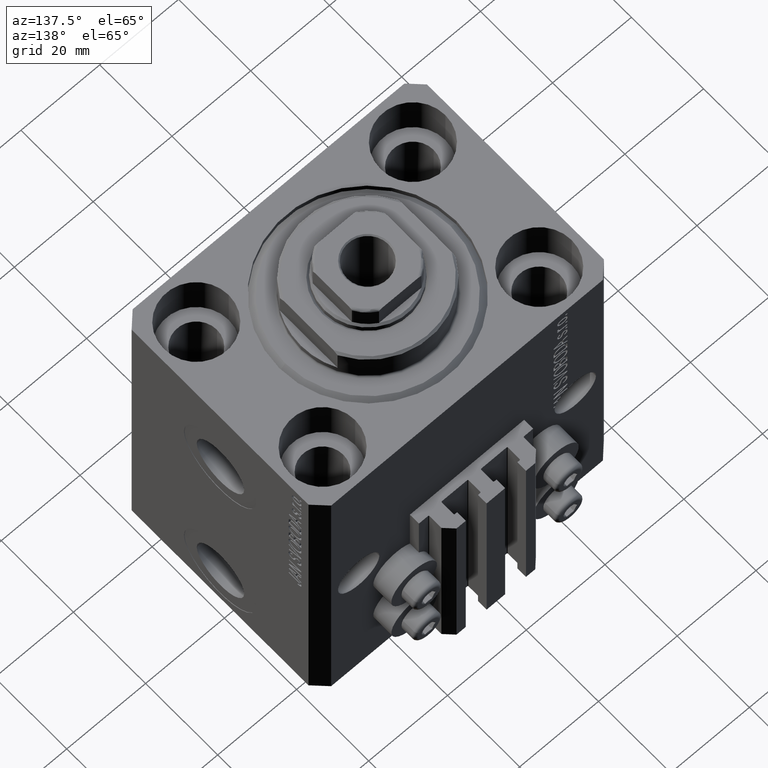
[diagram: clean part render]
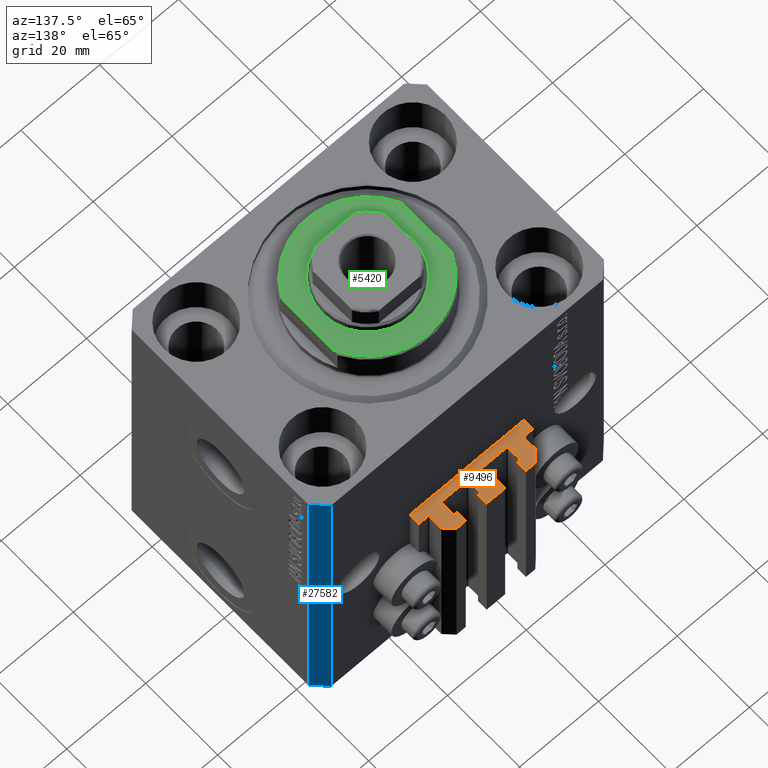
[diagram: same view with three faces highlighted in distinct colors, each labeled with its STEP entity id]
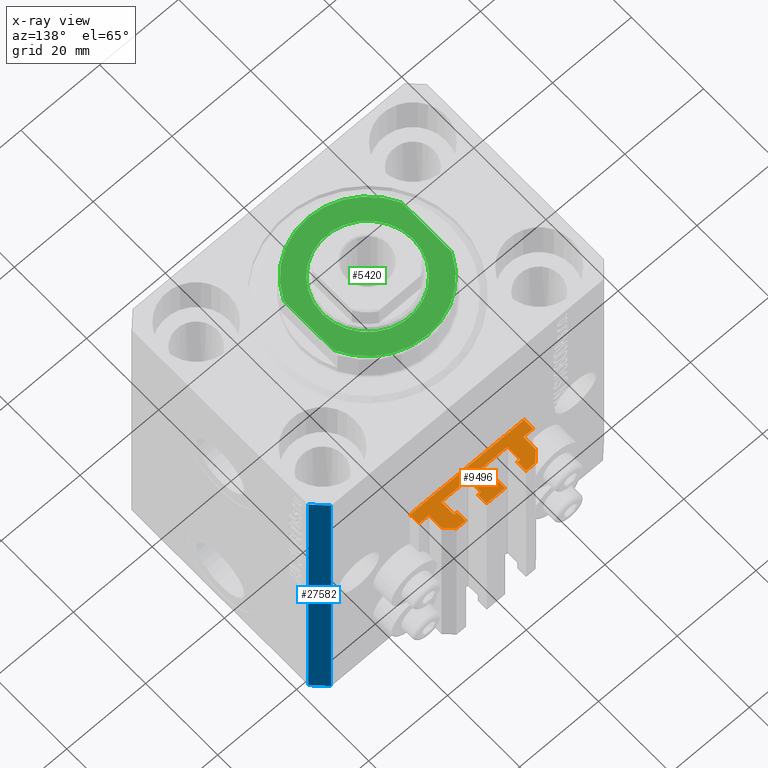
[diagram: x-ray of the same camera — body ghosted, the three highlighted faces saturated]
A machine part, auxiliary view with three faces highlighted in distinct colors.
The next image is the same camera in x-ray (body ghosted, the three faces saturated) — at least one of them is partly hidden behind the body in this view.
Their STEP definitions:

[orange] entity #9496 — the highlighted planar face has unit normal (0, 0, 1).
#11 = DIRECTION ( 'NONE',  ( 1.000000000000000000, 0.000000000000000000, 0.000000000000000000 ) ) ;
#228 = CARTESIAN_POINT ( 'NONE',  ( -2.350000000000003642, 35.50000000000001421, -33.00000000000000000 ) ) ;
#366 = DIRECTION ( 'NONE',  ( -0.7071067811865460184, -0.7071067811865490160, 0.000000000000000000 ) ) ;
#467 = CARTESIAN_POINT ( 'NONE',  ( 7.649999999999998579, 33.10000000000001563, -33.00000000000000000 ) ) ;
#968 = VECTOR ( 'NONE', #31042, 1000.000000000000000 ) ;
#991 = DIRECTION ( 'NONE',  ( 1.000000000000000000, 1.261617073437673039E-14, 0.000000000000000000 ) ) ;
#1043 = ORIENTED_EDGE ( 'NONE', *, *, #45087, .T. ) ;
#1132 = DIRECTION ( 'NONE',  ( -5.256737805990334897E-16, 1.000000000000000000, 0.000000000000000000 ) ) ;
#1181 = EDGE_CURVE ( 'NONE', #12159, #12977, #34632, .T. ) ;
#1198 = CARTESIAN_POINT ( 'NONE',  ( -8.399999999999996803, 29.69999999999999929, -33.00000000000000000 ) ) ;
#1306 = CARTESIAN_POINT ( 'NONE',  ( -10.00000000000000000, 35.50000000000000000, -33.00000000000000000 ) ) ;
#1339 = DIRECTION ( 'NONE',  ( 1.000000000000000000, 0.000000000000000000, 0.000000000000000000 ) ) ;
#1343 = LINE ( 'NONE', #44916, #27702 ) ;
#1389 = ORIENTED_EDGE ( 'NONE', *, *, #40503, .F. ) ;
#1576 = ORIENTED_EDGE ( 'NONE', *, *, #39053, .F. ) ;
#1654 = CARTESIAN_POINT ( 'NONE',  ( 1.800000000000000933, 33.10000000000001563, -33.00000000000000000 ) ) ;
#1879 = LINE ( 'NONE', #1654, #968 ) ;
#1986 = CARTESIAN_POINT ( 'NONE',  ( -14.50000000000000000, 29.99999999999999289, -33.00000000000000000 ) ) ;
#2527 = EDGE_CURVE ( 'NONE', #25609, #25677, #31585, .T. ) ;
#3252 = ORIENTED_EDGE ( 'NONE', *, *, #25566, .T. ) ;
#3318 = CARTESIAN_POINT ( 'NONE',  ( 14.49999999999999645, 30.00000000000002487, -33.00000000000000000 ) ) ;
#3348 = VERTEX_POINT ( 'NONE', #26254 ) ;
#3494 = EDGE_CURVE ( 'NONE', #3914, #30146, #40321, .T. ) ;
#3535 = DIRECTION ( 'NONE',  ( 0.000000000000000000, 0.000000000000000000, 1.000000000000000000 ) ) ;
#3605 = CARTESIAN_POINT ( 'NONE',  ( 1.600000000000000533, 29.69999999999999929, -33.00000000000000000 ) ) ;
#3914 = VERTEX_POINT ( 'NONE', #37194 ) ;
#4353 = ORIENTED_EDGE ( 'NONE', *, *, #45079, .T. ) ;
#4590 = VERTEX_POINT ( 'NONE', #4853 ) ;
#4853 = CARTESIAN_POINT ( 'NONE',  ( -8.199999999999997513, 33.09999999999998721, -33.00000000000000000 ) ) ;
#4873 = LINE ( 'NONE', #1306, #39292 ) ;
#4950 = DIRECTION ( 'NONE',  ( 1.000000000000000000, 0.000000000000000000, 0.000000000000000000 ) ) ;
#5147 = CARTESIAN_POINT ( 'NONE',  ( 8.400000000000000355, 32.90000000000001990, -33.00000000000000000 ) ) ;
#5339 = ORIENTED_EDGE ( 'NONE', *, *, #23253, .T. ) ;
#5355 = CARTESIAN_POINT ( 'NONE',  ( -8.199999999999997513, 29.50000000000000355, -33.00000000000000000 ) ) ;
#5755 = CARTESIAN_POINT ( 'NONE',  ( 1.600000000000000533, 32.90000000000001279, -33.00000000000000000 ) ) ;
#5904 = CARTESIAN_POINT ( 'NONE',  ( 12.00000000000000178, 30.20000000000002061, -33.00000000000000000 ) ) ;
#5965 = CARTESIAN_POINT ( 'NONE',  ( -2.350000000000003642, 35.50000000000001421, -33.00000000000000000 ) ) ;
#5995 = CIRCLE ( 'NONE', #27973, 0.1999999999999987899 ) ;
#6083 = VERTEX_POINT ( 'NONE', #29971 ) ;
#6127 = VECTOR ( 'NONE', #12476, 1000.000000000000000 ) ;
#6148 = DIRECTION ( 'NONE',  ( 1.000000000000000000, 0.000000000000000000, 0.000000000000000000 ) ) ;
#6516 = CARTESIAN_POINT ( 'NONE',  ( 1.800000000000000933, 32.90000000000001279, -33.00000000000000000 ) ) ;
#6584 = ORIENTED_EDGE ( 'NONE', *, *, #13367, .F. ) ;
#6662 = VECTOR ( 'NONE', #9283, 1000.000000000000000 ) ;
#6927 = CARTESIAN_POINT ( 'NONE',  ( -1.600000000000000533, 32.90000000000001279, -33.00000000000000000 ) ) ;
#7251 = VECTOR ( 'NONE', #13106, 1000.000000000000000 ) ;
#8095 = DIRECTION ( 'NONE',  ( 0.000000000000000000, 1.000000000000000000, 0.000000000000000000 ) ) ;
#8394 = CIRCLE ( 'NONE', #16713, 0.2000000000000016209 ) ;
#8411 = CARTESIAN_POINT ( 'NONE',  ( 8.200000000000001066, 33.10000000000000853, -33.00000000000000000 ) ) ;
#8685 = DIRECTION ( 'NONE',  ( 0.000000000000000000, -1.000000000000000000, 0.000000000000000000 ) ) ;
#8780 = CARTESIAN_POINT ( 'NONE',  ( 2.349999999999999645, 33.10000000000000853, -33.00000000000000000 ) ) ;
#9050 = ORIENTED_EDGE ( 'NONE', *, *, #3494, .T. ) ;
#9135 = CARTESIAN_POINT ( 'NONE',  ( -2.350000000000003642, 35.50000000000001421, -33.00000000000000000 ) ) ;
#9283 = DIRECTION ( 'NONE',  ( 0.000000000000000000, 1.000000000000000000, 0.000000000000000000 ) ) ;
#9326 = EDGE_CURVE ( 'NONE', #25035, #9505, #19202, .T. ) ;
#9496 = ADVANCED_FACE ( 'NONE', ( #43298 ), #10840, .T. ) ;
#9505 = VERTEX_POINT ( 'NONE', #16681 ) ;
#9616 = CARTESIAN_POINT ( 'NONE',  ( -8.399999999999996803, 29.69999999999999929, -33.00000000000000000 ) ) ;
#9872 = CARTESIAN_POINT ( 'NONE',  ( 8.400000000000000355, 29.70000000000000284, -33.00000000000000000 ) ) ;
#9900 = ORIENTED_EDGE ( 'NONE', *, *, #23508, .F. ) ;
#10359 = ORIENTED_EDGE ( 'NONE', *, *, #40272, .T. ) ;
#10433 = CARTESIAN_POINT ( 'NONE',  ( 2.349999999999999645, 35.50000000000001421, -33.00000000000000000 ) ) ;
#10636 = CARTESIAN_POINT ( 'NONE',  ( 12.00000000000000000, 33.50000000000001421, -33.00000000000000000 ) ) ;
#10698 = VECTOR ( 'NONE', #36078, 1000.000000000000000 ) ;
#10754 = EDGE_CURVE ( 'NONE', #6083, #30698, #36780, .T. ) ;
#10772 = EDGE_LOOP ( 'NONE', ( #25254, #27754, #16359, #39429, #6584, #39780, #28784, #4353, #3252, #23660, #1389, #1043, #18547, #18446, #28974, #34409, #33998, #24034, #10359, #36248, #31248, #9050, #1576, #32992, #40935, #14900, #9900, #5339, #12255, #15331, #40842, #46005, #36932, #46309, #16020, #44614 ) ) ;
#10840 = PLANE ( 'NONE',  #29618 ) ;
#10907 = VERTEX_POINT ( 'NONE', #38405 ) ;
#10964 = VECTOR ( 'NONE', #42288, 1000.000000000000000 ) ;
#12070 = CARTESIAN_POINT ( 'NONE',  ( 14.49999999999999645, 30.00000000000002487, -33.00000000000000000 ) ) ;
#12159 = VERTEX_POINT ( 'NONE', #228 ) ;
#12255 = ORIENTED_EDGE ( 'NONE', *, *, #42542, .F. ) ;
#12258 = CARTESIAN_POINT ( 'NONE',  ( 12.00000000000000178, 30.20000000000002061, -33.00000000000000000 ) ) ;
#12461 = DIRECTION ( 'NONE',  ( 0.000000000000000000, 0.000000000000000000, 1.000000000000000000 ) ) ;
#12476 = DIRECTION ( 'NONE',  ( -1.000000000000000000, 0.000000000000000000, 0.000000000000000000 ) ) ;
#12600 = VERTEX_POINT ( 'NONE', #9616 ) ;
#12857 = VERTEX_POINT ( 'NONE', #8411 ) ;
#12977 = VERTEX_POINT ( 'NONE', #10433 ) ;
#13106 = DIRECTION ( 'NONE',  ( 0.000000000000000000, -1.000000000000000000, 0.000000000000000000 ) ) ;
#13263 = VERTEX_POINT ( 'NONE', #5904 ) ;
#13264 = EDGE_CURVE ( 'NONE', #14156, #43686, #1879, .T. ) ;
#13299 = LINE ( 'NONE', #26861, #6662 ) ;
#13367 = EDGE_CURVE ( 'NONE', #13263, #9505, #16863, .T. ) ;
#13526 = EDGE_CURVE ( 'NONE', #13263, #37193, #19612, .T. ) ;
#13724 = DIRECTION ( 'NONE',  ( -0.7071067811865474617, 0.7071067811865474617, 0.000000000000000000 ) ) ;
#14113 = DIRECTION ( 'NONE',  ( -5.421010862427496532E-16, -1.000000000000000000, 0.000000000000000000 ) ) ;
#14156 = VERTEX_POINT ( 'NONE', #35047 ) ;
#14366 = VECTOR ( 'NONE', #991, 1000.000000000000000 ) ;
#14377 = VECTOR ( 'NONE', #26069, 1000.000000000000000 ) ;
#14457 = CARTESIAN_POINT ( 'NONE',  ( 8.199999999999999289, 29.50000000000000711, -33.00000000000000000 ) ) ;
#14678 = VERTEX_POINT ( 'NONE', #38259 ) ;
#14778 = CARTESIAN_POINT ( 'NONE',  ( -1.800000000000000933, 32.90000000000001279, -33.00000000000000000 ) ) ;
#14900 = ORIENTED_EDGE ( 'NONE', *, *, #39531, .T. ) ;
#15331 = ORIENTED_EDGE ( 'NONE', *, *, #23765, .T. ) ;
#16020 = ORIENTED_EDGE ( 'NONE', *, *, #31373, .F. ) ;
#16248 = CIRCLE ( 'NONE', #42726, 0.1999999999999987899 ) ;
#16291 = DIRECTION ( 'NONE',  ( 1.000000000000000000, 1.261617073437685503E-14, 0.000000000000000000 ) ) ;
#16359 = ORIENTED_EDGE ( 'NONE', *, *, #35703, .T. ) ;
#16374 = VECTOR ( 'NONE', #8095, 1000.000000000000000 ) ;
#16518 = EDGE_CURVE ( 'NONE', #38910, #12857, #40980, .T. ) ;
#16528 = DIRECTION ( 'NONE',  ( 0.000000000000000000, 0.000000000000000000, 1.000000000000000000 ) ) ;
#16606 = AXIS2_PLACEMENT_3D ( 'NONE', #27447, #41863, #31230 ) ;
#16681 = CARTESIAN_POINT ( 'NONE',  ( 12.20000000000000107, 30.00000000000002487, -33.00000000000000000 ) ) ;
#16713 = AXIS2_PLACEMENT_3D ( 'NONE', #29543, #22892, #37328 ) ;
#16796 = CARTESIAN_POINT ( 'NONE',  ( 1.599999999999999645, 29.69999999999999929, -33.00000000000000000 ) ) ;
#16847 = CARTESIAN_POINT ( 'NONE',  ( 2.349999999999999645, 33.10000000000000853, -33.00000000000000000 ) ) ;
#16863 = CIRCLE ( 'NONE', #28214, 0.1999999999999987899 ) ;
#17122 = DIRECTION ( 'NONE',  ( -6.776263578034378061E-17, -1.000000000000000000, 0.000000000000000000 ) ) ;
#17353 = CARTESIAN_POINT ( 'NONE',  ( 7.649999999999998579, 35.50000000000001421, -33.00000000000000000 ) ) ;
#17431 = CARTESIAN_POINT ( 'NONE',  ( -1.600000000000000755, 29.69999999999999929, -33.00000000000000000 ) ) ;
#17534 = CARTESIAN_POINT ( 'NONE',  ( -12.00000000000000000, 30.19999999999999218, -33.00000000000000000 ) ) ;
#17699 = VECTOR ( 'NONE', #29650, 1000.000000000000000 ) ;
#17983 = DIRECTION ( 'NONE',  ( 1.000000000000000000, 0.000000000000000000, 0.000000000000000000 ) ) ;
#18098 = CIRCLE ( 'NONE', #16606, 0.2000000000000005107 ) ;
#18446 = ORIENTED_EDGE ( 'NONE', *, *, #45470, .T. ) ;
#18547 = ORIENTED_EDGE ( 'NONE', *, *, #37684, .F. ) ;
#18554 = AXIS2_PLACEMENT_3D ( 'NONE', #6516, #41822, #27405 ) ;
#18569 = DIRECTION ( 'NONE',  ( 0.000000000000000000, 0.000000000000000000, 1.000000000000000000 ) ) ;
#19009 = LINE ( 'NONE', #3605, #16374 ) ;
#19202 = LINE ( 'NONE', #12070, #30354 ) ;
#19245 = VECTOR ( 'NONE', #38907, 1000.000000000000000 ) ;
#19381 = DIRECTION ( 'NONE',  ( 1.000000000000000000, 0.000000000000000000, -0.000000000000000000 ) ) ;
#19407 = CIRCLE ( 'NONE', #33035, 0.2000000000000005107 ) ;
#19612 = LINE ( 'NONE', #12258, #29752 ) ;
#19762 = EDGE_CURVE ( 'NONE', #32786, #32569, #27797, .T. ) ;
#19781 = VERTEX_POINT ( 'NONE', #5755 ) ;
#19833 = VERTEX_POINT ( 'NONE', #26536 ) ;
#19948 = CARTESIAN_POINT ( 'NONE',  ( 8.399999999999998579, 32.90000000000001990, -33.00000000000000000 ) ) ;
#20072 = LINE ( 'NONE', #34519, #6127 ) ;
#20167 = CARTESIAN_POINT ( 'NONE',  ( -1.800000000000000933, 33.10000000000001563, -33.00000000000000000 ) ) ;
#20385 = LINE ( 'NONE', #34831, #14377 ) ;
#21187 = VECTOR ( 'NONE', #23953, 1000.000000000000000 ) ;
#21341 = DIRECTION ( 'NONE',  ( 0.000000000000000000, 0.000000000000000000, 1.000000000000000000 ) ) ;
#22576 = CARTESIAN_POINT ( 'NONE',  ( -2.350000000000003197, 33.10000000000000853, -33.00000000000000000 ) ) ;
#22791 = VECTOR ( 'NONE', #14113, 1000.000000000000000 ) ;
#22892 = DIRECTION ( 'NONE',  ( 0.000000000000000000, 0.000000000000000000, 1.000000000000000000 ) ) ;
#23253 = EDGE_CURVE ( 'NONE', #12600, #14678, #41456, .T. ) ;
#23508 = EDGE_CURVE ( 'NONE', #12600, #38108, #16248, .T. ) ;
#23523 = CARTESIAN_POINT ( 'NONE',  ( -12.20000000000000107, 29.99999999999998934, -33.00000000000000000 ) ) ;
#23650 = CARTESIAN_POINT ( 'NONE',  ( -8.199999999999997513, 33.09999999999998721, -33.00000000000000000 ) ) ;
#23660 = ORIENTED_EDGE ( 'NONE', *, *, #16518, .T. ) ;
#23708 = VERTEX_POINT ( 'NONE', #9872 ) ;
#23765 = EDGE_CURVE ( 'NONE', #4590, #45790, #34534, .T. ) ;
#23849 = VECTOR ( 'NONE', #33672, 1000.000000000000000 ) ;
#23953 = DIRECTION ( 'NONE',  ( 0.000000000000000000, 1.000000000000000000, 0.000000000000000000 ) ) ;
#24034 = ORIENTED_EDGE ( 'NONE', *, *, #13264, .T. ) ;
#24646 = VECTOR ( 'NONE', #33745, 1000.000000000000000 ) ;
#24740 = EDGE_CURVE ( 'NONE', #12159, #3914, #38968, .T. ) ;
#24758 = EDGE_CURVE ( 'NONE', #14156, #19781, #38977, .T. ) ;
#24868 = DIRECTION ( 'NONE',  ( 0.000000000000000000, 0.000000000000000000, 1.000000000000000000 ) ) ;
#24931 = VECTOR ( 'NONE', #17122, 1000.000000000000000 ) ;
#24950 = VERTEX_POINT ( 'NONE', #28802 ) ;
#25035 = VERTEX_POINT ( 'NONE', #3318 ) ;
#25046 = VECTOR ( 'NONE', #35403, 1000.000000000000000 ) ;
#25254 = ORIENTED_EDGE ( 'NONE', *, *, #25942, .T. ) ;
#25566 = EDGE_CURVE ( 'NONE', #28934, #38910, #1343, .T. ) ;
#25609 = VERTEX_POINT ( 'NONE', #27190 ) ;
#25677 = VERTEX_POINT ( 'NONE', #17431 ) ;
#25942 = EDGE_CURVE ( 'NONE', #10907, #32786, #41091, .T. ) ;
#26069 = DIRECTION ( 'NONE',  ( -1.000000000000000000, 0.000000000000000000, 0.000000000000000000 ) ) ;
#26254 = CARTESIAN_POINT ( 'NONE',  ( -1.800000000000000933, 29.50000000000000355, -33.00000000000000000 ) ) ;
#26493 = CIRCLE ( 'NONE', #27226, 0.2000000000000031197 ) ;
#26536 = CARTESIAN_POINT ( 'NONE',  ( 9.999999999999998224, 35.50000000000001421, -33.00000000000000000 ) ) ;
#26616 = LINE ( 'NONE', #33470, #43656 ) ;
#26835 = VERTEX_POINT ( 'NONE', #23523 ) ;
#26861 = CARTESIAN_POINT ( 'NONE',  ( 14.49999999999999645, 27.50000000000000355, -33.00000000000000000 ) ) ;
#27094 = AXIS2_PLACEMENT_3D ( 'NONE', #37370, #12461, #1339 ) ;
#27190 = CARTESIAN_POINT ( 'NONE',  ( -1.599999999999997868, 32.90000000000001279, -33.00000000000000000 ) ) ;
#27226 = AXIS2_PLACEMENT_3D ( 'NONE', #14778, #18569, #44138 ) ;
#27405 = DIRECTION ( 'NONE',  ( 1.000000000000000000, 0.000000000000000000, 0.000000000000000000 ) ) ;
#27447 = CARTESIAN_POINT ( 'NONE',  ( -8.199999999999997513, 32.89999999999999147, -33.00000000000000000 ) ) ;
#27485 = DIRECTION ( 'NONE',  ( -1.000000000000000000, 0.000000000000000000, 0.000000000000000000 ) ) ;
#27644 = VECTOR ( 'NONE', #16291, 1000.000000000000000 ) ;
#27702 = VECTOR ( 'NONE', #8685, 1000.000000000000000 ) ;
#27754 = ORIENTED_EDGE ( 'NONE', *, *, #19762, .T. ) ;
#27797 = LINE ( 'NONE', #45991, #19245 ) ;
#27973 = AXIS2_PLACEMENT_3D ( 'NONE', #36004, #3535, #17983 ) ;
#28214 = AXIS2_PLACEMENT_3D ( 'NONE', #31271, #39056, #6148 ) ;
#28233 = DIRECTION ( 'NONE',  ( 1.000000000000000000, 0.000000000000000000, 0.000000000000000000 ) ) ;
#28691 = VECTOR ( 'NONE', #11, 1000.000000000000000 ) ;
#28784 = ORIENTED_EDGE ( 'NONE', *, *, #40341, .T. ) ;
#28802 = CARTESIAN_POINT ( 'NONE',  ( -7.650000000000000355, 35.50000000000000000, -33.00000000000000000 ) ) ;
#28812 = EDGE_CURVE ( 'NONE', #24950, #33410, #40139, .T. ) ;
#28934 = VERTEX_POINT ( 'NONE', #17353 ) ;
#28974 = ORIENTED_EDGE ( 'NONE', *, *, #45241, .F. ) ;
#29543 = CARTESIAN_POINT ( 'NONE',  ( 1.800000000000000933, 29.69999999999999929, -33.00000000000000000 ) ) ;
#29618 = AXIS2_PLACEMENT_3D ( 'NONE', #45805, #34684, #19381 ) ;
#29650 = DIRECTION ( 'NONE',  ( 1.000000000000000000, -1.261617073437673828E-14, 0.000000000000000000 ) ) ;
#29752 = VECTOR ( 'NONE', #1132, 1000.000000000000000 ) ;
#29971 = CARTESIAN_POINT ( 'NONE',  ( -12.00000000000000000, 33.49999999999998579, -33.00000000000000000 ) ) ;
#30146 = VERTEX_POINT ( 'NONE', #20167 ) ;
#30354 = VECTOR ( 'NONE', #27485, 1000.000000000000000 ) ;
#30481 = EDGE_CURVE ( 'NONE', #35118, #19781, #19009, .T. ) ;
#30601 = VERTEX_POINT ( 'NONE', #37942 ) ;
#30698 = VERTEX_POINT ( 'NONE', #17534 ) ;
#30936 = CIRCLE ( 'NONE', #36975, 0.1999999999999970690 ) ;
#31042 = DIRECTION ( 'NONE',  ( 1.000000000000000000, -1.261617073437681085E-14, 0.000000000000000000 ) ) ;
#31230 = DIRECTION ( 'NONE',  ( 1.000000000000000000, 0.000000000000000000, 0.000000000000000000 ) ) ;
#31248 = ORIENTED_EDGE ( 'NONE', *, *, #24740, .T. ) ;
#31271 = CARTESIAN_POINT ( 'NONE',  ( 12.20000000000000107, 30.20000000000002061, -33.00000000000000000 ) ) ;
#31373 = EDGE_CURVE ( 'NONE', #26835, #30698, #19407, .T. ) ;
#31585 = LINE ( 'NONE', #6927, #24931 ) ;
#32238 = CARTESIAN_POINT ( 'NONE',  ( -12.20000000000000107, 30.19999999999999218, -33.00000000000000000 ) ) ;
#32569 = VERTEX_POINT ( 'NONE', #33286 ) ;
#32694 = CARTESIAN_POINT ( 'NONE',  ( -14.50000000000000000, 27.50000000000000355, -33.00000000000000000 ) ) ;
#32786 = VERTEX_POINT ( 'NONE', #32694 ) ;
#32992 = ORIENTED_EDGE ( 'NONE', *, *, #2527, .T. ) ;
#33035 = AXIS2_PLACEMENT_3D ( 'NONE', #32238, #21341, #28233 ) ;
#33286 = CARTESIAN_POINT ( 'NONE',  ( 14.49999999999999645, 27.50000000000000355, -33.00000000000000000 ) ) ;
#33410 = VERTEX_POINT ( 'NONE', #39207 ) ;
#33467 = CARTESIAN_POINT ( 'NONE',  ( -12.00000000000000000, 33.49999999999998579, -33.00000000000000000 ) ) ;
#33470 = CARTESIAN_POINT ( 'NONE',  ( -7.650000000000000355, 33.09999999999999432, -33.00000000000000000 ) ) ;
#33672 = DIRECTION ( 'NONE',  ( -1.084202172485505223E-15, 1.000000000000000000, 0.000000000000000000 ) ) ;
#33745 = DIRECTION ( 'NONE',  ( -1.000000000000000000, 0.000000000000000000, 0.000000000000000000 ) ) ;
#33836 = EDGE_CURVE ( 'NONE', #45790, #24950, #26616, .T. ) ;
#33998 = ORIENTED_EDGE ( 'NONE', *, *, #24758, .F. ) ;
#34047 = DIRECTION ( 'NONE',  ( -1.000000000000000000, 1.508455196501571429E-15, 0.000000000000000000 ) ) ;
#34190 = EDGE_CURVE ( 'NONE', #3348, #25677, #36134, .T. ) ;
#34409 = ORIENTED_EDGE ( 'NONE', *, *, #30481, .T. ) ;
#34519 = CARTESIAN_POINT ( 'NONE',  ( 9.999999999999998224, 35.50000000000001421, -33.00000000000000000 ) ) ;
#34534 = LINE ( 'NONE', #23650, #27644 ) ;
#34632 = LINE ( 'NONE', #5965, #28691 ) ;
#34684 = DIRECTION ( 'NONE',  ( 0.000000000000000000, 0.000000000000000000, 1.000000000000000000 ) ) ;
#34800 = VERTEX_POINT ( 'NONE', #19948 ) ;
#34831 = CARTESIAN_POINT ( 'NONE',  ( -1.800000000000000933, 29.50000000000000355, -33.00000000000000000 ) ) ;
#34839 = LINE ( 'NONE', #10636, #37831 ) ;
#35047 = CARTESIAN_POINT ( 'NONE',  ( 1.800000000000000933, 33.10000000000001563, -33.00000000000000000 ) ) ;
#35118 = VERTEX_POINT ( 'NONE', #16796 ) ;
#35403 = DIRECTION ( 'NONE',  ( -1.000000000000000000, -1.084202172485504828E-15, 0.000000000000000000 ) ) ;
#35703 = EDGE_CURVE ( 'NONE', #32569, #25035, #13299, .T. ) ;
#36004 = CARTESIAN_POINT ( 'NONE',  ( 8.199999999999999289, 29.70000000000000284, -33.00000000000000000 ) ) ;
#36078 = DIRECTION ( 'NONE',  ( 0.000000000000000000, -1.000000000000000000, 0.000000000000000000 ) ) ;
#36134 = CIRCLE ( 'NONE', #27094, 0.1999999999999994282 ) ;
#36248 = ORIENTED_EDGE ( 'NONE', *, *, #1181, .F. ) ;
#36780 = LINE ( 'NONE', #33467, #10698 ) ;
#36932 = ORIENTED_EDGE ( 'NONE', *, *, #42030, .T. ) ;
#36975 = AXIS2_PLACEMENT_3D ( 'NONE', #44486, #16528, #4950 ) ;
#37193 = VERTEX_POINT ( 'NONE', #44891 ) ;
#37194 = CARTESIAN_POINT ( 'NONE',  ( -2.350000000000003197, 33.10000000000000853, -33.00000000000000000 ) ) ;
#37328 = DIRECTION ( 'NONE',  ( 1.000000000000000000, 0.000000000000000000, 0.000000000000000000 ) ) ;
#37370 = CARTESIAN_POINT ( 'NONE',  ( -1.800000000000000933, 29.69999999999999929, -33.00000000000000000 ) ) ;
#37612 = LINE ( 'NONE', #5147, #22791 ) ;
#37684 = EDGE_CURVE ( 'NONE', #43853, #23708, #5995, .T. ) ;
#37831 = VECTOR ( 'NONE', #13724, 1000.000000000000114 ) ;
#37942 = CARTESIAN_POINT ( 'NONE',  ( 1.800000000000000933, 29.50000000000000000, -33.00000000000000000 ) ) ;
#38108 = VERTEX_POINT ( 'NONE', #5355 ) ;
#38259 = CARTESIAN_POINT ( 'NONE',  ( -8.400000000000000355, 32.89999999999999858, -33.00000000000000000 ) ) ;
#38405 = CARTESIAN_POINT ( 'NONE',  ( -14.50000000000000000, 29.99999999999999289, -33.00000000000000000 ) ) ;
#38734 = CARTESIAN_POINT ( 'NONE',  ( 7.649999999999998579, 33.10000000000001563, -33.00000000000000000 ) ) ;
#38907 = DIRECTION ( 'NONE',  ( 1.000000000000000000, 0.000000000000000000, 0.000000000000000000 ) ) ;
#38910 = VERTEX_POINT ( 'NONE', #38734 ) ;
#38968 = LINE ( 'NONE', #9135, #10964 ) ;
#38977 = CIRCLE ( 'NONE', #18554, 0.2000000000000033418 ) ;
#39053 = EDGE_CURVE ( 'NONE', #25609, #30146, #26493, .T. ) ;
#39056 = DIRECTION ( 'NONE',  ( 0.000000000000000000, 0.000000000000000000, 1.000000000000000000 ) ) ;
#39207 = CARTESIAN_POINT ( 'NONE',  ( -10.00000000000000000, 35.50000000000000000, -33.00000000000000000 ) ) ;
#39292 = VECTOR ( 'NONE', #366, 1000.000000000000227 ) ;
#39297 = DIRECTION ( 'NONE',  ( 1.000000000000000000, 0.000000000000000000, 0.000000000000000000 ) ) ;
#39429 = ORIENTED_EDGE ( 'NONE', *, *, #9326, .T. ) ;
#39531 = EDGE_CURVE ( 'NONE', #3348, #38108, #20385, .T. ) ;
#39780 = ORIENTED_EDGE ( 'NONE', *, *, #13526, .T. ) ;
#39998 = CARTESIAN_POINT ( 'NONE',  ( -8.199999999999997513, 29.69999999999999929, -33.00000000000000000 ) ) ;
#40139 = LINE ( 'NONE', #43676, #24646 ) ;
#40272 = EDGE_CURVE ( 'NONE', #43686, #12977, #41242, .T. ) ;
#40321 = LINE ( 'NONE', #22576, #14366 ) ;
#40325 = DIRECTION ( 'NONE',  ( 0.000000000000000000, 1.000000000000000000, 0.000000000000000000 ) ) ;
#40341 = EDGE_CURVE ( 'NONE', #37193, #19833, #34839, .T. ) ;
#40503 = EDGE_CURVE ( 'NONE', #34800, #12857, #30936, .T. ) ;
#40842 = ORIENTED_EDGE ( 'NONE', *, *, #33836, .T. ) ;
#40935 = ORIENTED_EDGE ( 'NONE', *, *, #34190, .F. ) ;
#40980 = LINE ( 'NONE', #467, #17699 ) ;
#41091 = LINE ( 'NONE', #1986, #7251 ) ;
#41242 = LINE ( 'NONE', #8780, #21187 ) ;
#41456 = LINE ( 'NONE', #1198, #23849 ) ;
#41611 = CARTESIAN_POINT ( 'NONE',  ( -12.20000000000000107, 29.99999999999998934, -33.00000000000000000 ) ) ;
#41687 = CARTESIAN_POINT ( 'NONE',  ( -7.650000000000000355, 33.09999999999999432, -33.00000000000000000 ) ) ;
#41822 = DIRECTION ( 'NONE',  ( 0.000000000000000000, 0.000000000000000000, 1.000000000000000000 ) ) ;
#41863 = DIRECTION ( 'NONE',  ( 0.000000000000000000, 0.000000000000000000, 1.000000000000000000 ) ) ;
#42030 = EDGE_CURVE ( 'NONE', #33410, #6083, #4873, .T. ) ;
#42288 = DIRECTION ( 'NONE',  ( 1.807003620809174632E-16, -1.000000000000000000, 0.000000000000000000 ) ) ;
#42542 = EDGE_CURVE ( 'NONE', #4590, #14678, #18098, .T. ) ;
#42726 = AXIS2_PLACEMENT_3D ( 'NONE', #39998, #24868, #39297 ) ;
#42730 = LINE ( 'NONE', #46504, #25046 ) ;
#43298 = FACE_OUTER_BOUND ( 'NONE', #10772, .T. ) ;
#43656 = VECTOR ( 'NONE', #40325, 1000.000000000000000 ) ;
#43676 = CARTESIAN_POINT ( 'NONE',  ( -7.650000000000000355, 35.50000000000000000, -33.00000000000000000 ) ) ;
#43686 = VERTEX_POINT ( 'NONE', #16847 ) ;
#43853 = VERTEX_POINT ( 'NONE', #14457 ) ;
#44077 = EDGE_CURVE ( 'NONE', #26835, #10907, #45616, .T. ) ;
#44138 = DIRECTION ( 'NONE',  ( 1.000000000000000000, 0.000000000000000000, 0.000000000000000000 ) ) ;
#44486 = CARTESIAN_POINT ( 'NONE',  ( 8.200000000000001066, 32.90000000000001990, -33.00000000000000000 ) ) ;
#44614 = ORIENTED_EDGE ( 'NONE', *, *, #44077, .T. ) ;
#44891 = CARTESIAN_POINT ( 'NONE',  ( 12.00000000000000000, 33.50000000000001421, -33.00000000000000000 ) ) ;
#44916 = CARTESIAN_POINT ( 'NONE',  ( 7.649999999999998579, 35.50000000000001421, -33.00000000000000000 ) ) ;
#45079 = EDGE_CURVE ( 'NONE', #19833, #28934, #20072, .T. ) ;
#45087 = EDGE_CURVE ( 'NONE', #34800, #23708, #37612, .T. ) ;
#45241 = EDGE_CURVE ( 'NONE', #35118, #30601, #8394, .T. ) ;
#45398 = VECTOR ( 'NONE', #34047, 1000.000000000000000 ) ;
#45470 = EDGE_CURVE ( 'NONE', #43853, #30601, #42730, .T. ) ;
#45616 = LINE ( 'NONE', #41611, #45398 ) ;
#45790 = VERTEX_POINT ( 'NONE', #41687 ) ;
#45805 = CARTESIAN_POINT ( 'NONE',  ( 12.20000000000000107, 30.20000000000002061, -33.00000000000000000 ) ) ;
#45991 = CARTESIAN_POINT ( 'NONE',  ( -14.50000000000000000, 27.50000000000000355, -33.00000000000000000 ) ) ;
#46005 = ORIENTED_EDGE ( 'NONE', *, *, #28812, .T. ) ;
#46309 = ORIENTED_EDGE ( 'NONE', *, *, #10754, .T. ) ;
#46504 = CARTESIAN_POINT ( 'NONE',  ( 8.199999999999999289, 29.50000000000000711, -33.00000000000000000 ) ) ;

[blue] entity #27582 — the highlighted planar face has unit normal (0.7071, 0.7071, 0).
#667 = DIRECTION ( 'NONE',  ( 0.000000000000000000, 0.000000000000000000, 1.000000000000000000 ) ) ;
#1319 = DIRECTION ( 'NONE',  ( 0.7071067811865594521, 0.7071067811865356934, -0.000000000000000000 ) ) ;
#3542 = VERTEX_POINT ( 'NONE', #20168 ) ;
#4089 = CARTESIAN_POINT ( 'NONE',  ( 37.50000000000051870, 24.49999999999995381, -80.00000000000000000 ) ) ;
#4269 = ORIENTED_EDGE ( 'NONE', *, *, #46537, .T. ) ;
#6868 = ORIENTED_EDGE ( 'NONE', *, *, #37486, .F. ) ;
#8492 = CARTESIAN_POINT ( 'NONE',  ( 37.50000000000051870, 24.49999999999995381, 0.000000000000000000 ) ) ;
#9601 = CARTESIAN_POINT ( 'NONE',  ( 34.50000000000056843, 27.50000000000000000, -80.00000000000000000 ) ) ;
#10272 = EDGE_CURVE ( 'NONE', #3542, #39650, #32906, .T. ) ;
#11109 = EDGE_LOOP ( 'NONE', ( #6868, #21857, #36273, #4269 ) ) ;
#11682 = EDGE_CURVE ( 'NONE', #3542, #29926, #40328, .T. ) ;
#12329 = DIRECTION ( 'NONE',  ( -0.7071067811865356934, 0.7071067811865594521, 0.000000000000000000 ) ) ;
#14219 = VERTEX_POINT ( 'NONE', #14885 ) ;
#14885 = CARTESIAN_POINT ( 'NONE',  ( 34.50000000000056843, 27.50000000000000000, 0.000000000000000000 ) ) ;
#18070 = DIRECTION ( 'NONE',  ( -0.7071067811865356934, 0.7071067811865594521, 0.000000000000000000 ) ) ;
#19348 = FACE_OUTER_BOUND ( 'NONE', #11109, .T. ) ;
#20168 = CARTESIAN_POINT ( 'NONE',  ( 37.50000000000051870, 24.49999999999995381, -80.00000000000000000 ) ) ;
#20753 = LINE ( 'NONE', #9601, #22822 ) ;
#21857 = ORIENTED_EDGE ( 'NONE', *, *, #10272, .F. ) ;
#22659 = VECTOR ( 'NONE', #12329, 1000.000000000000114 ) ;
#22822 = VECTOR ( 'NONE', #28573, 1000.000000000000000 ) ;
#23252 = CARTESIAN_POINT ( 'NONE',  ( 37.50000000000051870, 24.49999999999995381, 0.000000000000000000 ) ) ;
#25429 = CARTESIAN_POINT ( 'NONE',  ( 34.50000000000056843, 27.50000000000000000, -80.00000000000000000 ) ) ;
#27582 = ADVANCED_FACE ( 'NONE', ( #19348 ), #36646, .T. ) ;
#28573 = DIRECTION ( 'NONE',  ( 0.000000000000000000, 0.000000000000000000, 1.000000000000000000 ) ) ;
#29563 = CARTESIAN_POINT ( 'NONE',  ( 37.50000000000051870, 24.49999999999995381, -80.00000000000000000 ) ) ;
#29926 = VERTEX_POINT ( 'NONE', #25429 ) ;
#32906 = LINE ( 'NONE', #43307, #40199 ) ;
#33446 = LINE ( 'NONE', #23252, #22659 ) ;
#36273 = ORIENTED_EDGE ( 'NONE', *, *, #11682, .T. ) ;
#36646 = PLANE ( 'NONE',  #38205 ) ;
#37486 = EDGE_CURVE ( 'NONE', #39650, #14219, #33446, .T. ) ;
#38205 = AXIS2_PLACEMENT_3D ( 'NONE', #29563, #1319, #44429 ) ;
#39650 = VERTEX_POINT ( 'NONE', #8492 ) ;
#40199 = VECTOR ( 'NONE', #667, 1000.000000000000000 ) ;
#40328 = LINE ( 'NONE', #4089, #44015 ) ;
#43307 = CARTESIAN_POINT ( 'NONE',  ( 37.50000000000051870, 24.49999999999995381, -80.00000000000000000 ) ) ;
#44015 = VECTOR ( 'NONE', #18070, 1000.000000000000114 ) ;
#44429 = DIRECTION ( 'NONE',  ( -0.7071067811865356934, 0.7071067811865594521, 0.000000000000000000 ) ) ;
#46537 = EDGE_CURVE ( 'NONE', #29926, #14219, #20753, .T. ) ;

[green] entity #5420 — the highlighted planar face has unit normal (0, 0, 1).
#138 = ORIENTED_EDGE ( 'NONE', *, *, #7543, .T. ) ;
#750 = AXIS2_PLACEMENT_3D ( 'NONE', #1023, #798, #44600 ) ;
#798 = DIRECTION ( 'NONE',  ( 0.000000000000000000, 0.000000000000000000, -1.000000000000000000 ) ) ;
#921 = LINE ( 'NONE', #44265, #8996 ) ;
#1023 = CARTESIAN_POINT ( 'NONE',  ( 0.000000000000000000, 0.000000000000000000, -8.000000000000000000 ) ) ;
#3997 = DIRECTION ( 'NONE',  ( -1.000000000000000000, 0.000000000000000000, -0.000000000000000000 ) ) ;
#4190 = EDGE_CURVE ( 'NONE', #23535, #39108, #38582, .T. ) ;
#4723 = DIRECTION ( 'NONE',  ( -1.000000000000000000, 0.000000000000000000, 0.000000000000000000 ) ) ;
#5420 = ADVANCED_FACE ( 'NONE', ( #36465, #39299 ), #21315, .T. ) ;
#6785 = ORIENTED_EDGE ( 'NONE', *, *, #4190, .T. ) ;
#7543 = EDGE_CURVE ( 'NONE', #42765, #42229, #16625, .T. ) ;
#7550 = VECTOR ( 'NONE', #28029, 1000.000000000000000 ) ;
#7557 = DIRECTION ( 'NONE',  ( -0.000000000000000000, -1.000000000000000000, -0.000000000000000000 ) ) ;
#8033 = CARTESIAN_POINT ( 'NONE',  ( 0.000000000000000000, 0.000000000000000000, -8.000000000000000000 ) ) ;
#8845 = CARTESIAN_POINT ( 'NONE',  ( 0.000000000000000000, 0.000000000000000000, -8.000000000000000000 ) ) ;
#8996 = VECTOR ( 'NONE', #7557, 1000.000000000000000 ) ;
#10113 = AXIS2_PLACEMENT_3D ( 'NONE', #8845, #12859, #23095 ) ;
#11299 = DIRECTION ( 'NONE',  ( -1.000000000000000000, 0.000000000000000000, 0.000000000000000000 ) ) ;
#11973 = CARTESIAN_POINT ( 'NONE',  ( -14.99999999999999645, -6.873863542433765517, -8.000000000000000000 ) ) ;
#12859 = DIRECTION ( 'NONE',  ( -0.000000000000000000, -0.000000000000000000, 1.000000000000000000 ) ) ;
#14659 = DIRECTION ( 'NONE',  ( 0.000000000000000000, 0.000000000000000000, -1.000000000000000000 ) ) ;
#16625 = CIRCLE ( 'NONE', #18911, 16.50000000000000000 ) ;
#18079 = CARTESIAN_POINT ( 'NONE',  ( 14.99999999999999645, -6.873863542433765517, -8.000000000000000000 ) ) ;
#18219 = CARTESIAN_POINT ( 'NONE',  ( 0.000000000000000000, 0.000000000000000000, -8.000000000000000000 ) ) ;
#18911 = AXIS2_PLACEMENT_3D ( 'NONE', #8033, #22511, #4723 ) ;
#21315 = PLANE ( 'NONE',  #40138 ) ;
#21374 = EDGE_CURVE ( 'NONE', #39108, #23535, #24520, .T. ) ;
#22410 = ORIENTED_EDGE ( 'NONE', *, *, #38370, .T. ) ;
#22511 = DIRECTION ( 'NONE',  ( 0.000000000000000000, 0.000000000000000000, -1.000000000000000000 ) ) ;
#23095 = DIRECTION ( 'NONE',  ( -1.000000000000000000, 0.000000000000000000, 0.000000000000000000 ) ) ;
#23535 = VERTEX_POINT ( 'NONE', #42849 ) ;
#24520 = CIRCLE ( 'NONE', #10113, 11.50000000000000355 ) ;
#24922 = CARTESIAN_POINT ( 'NONE',  ( 15.00000000000000000, -42.42640687119285303, -8.000000000000000000 ) ) ;
#27274 = CARTESIAN_POINT ( 'NONE',  ( 14.99999999999999645, 6.873863542433765517, -8.000000000000000000 ) ) ;
#28029 = DIRECTION ( 'NONE',  ( 0.000000000000000000, -1.000000000000000000, -0.000000000000000000 ) ) ;
#29583 = CARTESIAN_POINT ( 'NONE',  ( 0.000000000000000000, 0.000000000000000000, -8.000000000000000000 ) ) ;
#30007 = ORIENTED_EDGE ( 'NONE', *, *, #42971, .T. ) ;
#30089 = EDGE_LOOP ( 'NONE', ( #6785, #42556 ) ) ;
#33788 = CARTESIAN_POINT ( 'NONE',  ( -14.99999999999999645, 6.873863542433765517, -8.000000000000000000 ) ) ;
#33953 = CARTESIAN_POINT ( 'NONE',  ( 11.50000000000000355, 1.408343819019456570E-15, -8.000000000000000000 ) ) ;
#34740 = EDGE_LOOP ( 'NONE', ( #138, #22410, #30007, #37390 ) ) ;
#34810 = CIRCLE ( 'NONE', #750, 16.50000000000000000 ) ;
#36430 = DIRECTION ( 'NONE',  ( -0.000000000000000000, -0.000000000000000000, 1.000000000000000000 ) ) ;
#36465 = FACE_BOUND ( 'NONE', #30089, .T. ) ;
#37390 = ORIENTED_EDGE ( 'NONE', *, *, #37726, .F. ) ;
#37726 = EDGE_CURVE ( 'NONE', #42765, #38669, #921, .T. ) ;
#38370 = EDGE_CURVE ( 'NONE', #42229, #41085, #42212, .T. ) ;
#38582 = CIRCLE ( 'NONE', #43877, 11.50000000000000355 ) ;
#38669 = VERTEX_POINT ( 'NONE', #11973 ) ;
#39108 = VERTEX_POINT ( 'NONE', #33953 ) ;
#39299 = FACE_OUTER_BOUND ( 'NONE', #34740, .T. ) ;
#40138 = AXIS2_PLACEMENT_3D ( 'NONE', #18219, #14659, #3997 ) ;
#41085 = VERTEX_POINT ( 'NONE', #18079 ) ;
#42212 = LINE ( 'NONE', #24922, #7550 ) ;
#42229 = VERTEX_POINT ( 'NONE', #27274 ) ;
#42556 = ORIENTED_EDGE ( 'NONE', *, *, #21374, .T. ) ;
#42765 = VERTEX_POINT ( 'NONE', #33788 ) ;
#42849 = CARTESIAN_POINT ( 'NONE',  ( -11.50000000000000355, 0.000000000000000000, -8.000000000000000000 ) ) ;
#42971 = EDGE_CURVE ( 'NONE', #41085, #38669, #34810, .T. ) ;
#43877 = AXIS2_PLACEMENT_3D ( 'NONE', #29583, #36430, #11299 ) ;
#44265 = CARTESIAN_POINT ( 'NONE',  ( -15.00000000000000000, -42.42640687119285303, -8.000000000000000000 ) ) ;
#44600 = DIRECTION ( 'NONE',  ( -1.000000000000000000, 0.000000000000000000, 0.000000000000000000 ) ) ;